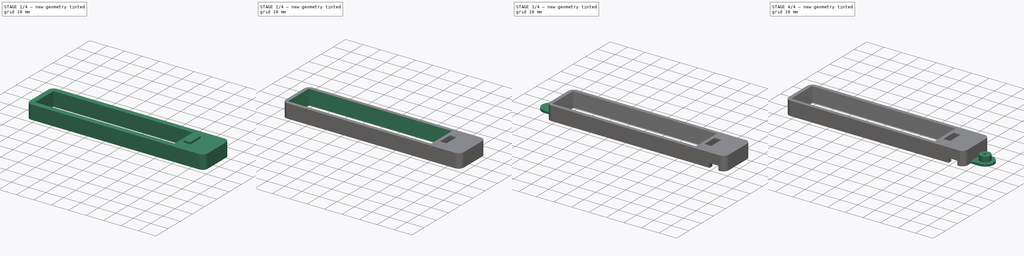
[diagram: build sequence overview — one tinted view per stage of 4, left to right]
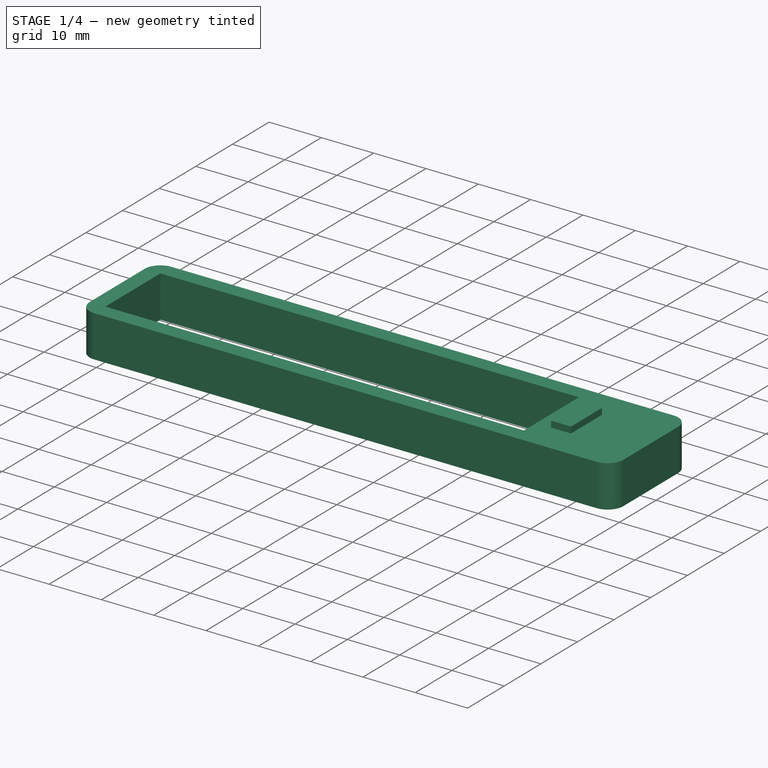
[diagram: stage 1 of 4 — iso view after this stage's code; geometry added in this stage tinted green]
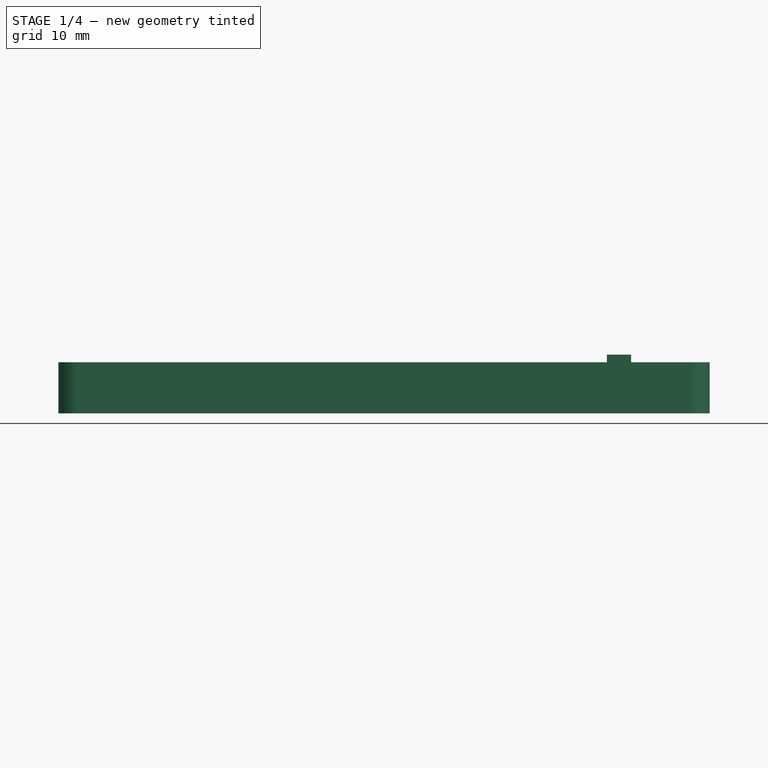
[diagram: stage 1 of 4 — front view after this stage's code; geometry added in this stage tinted green]
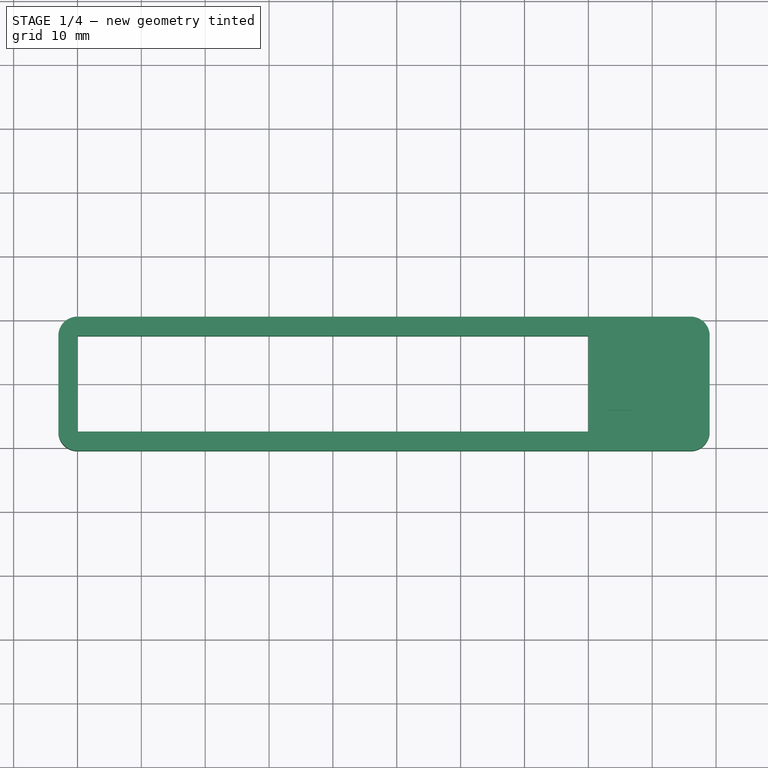
[diagram: stage 1 of 4 — top view after this stage's code; geometry added in this stage tinted green]
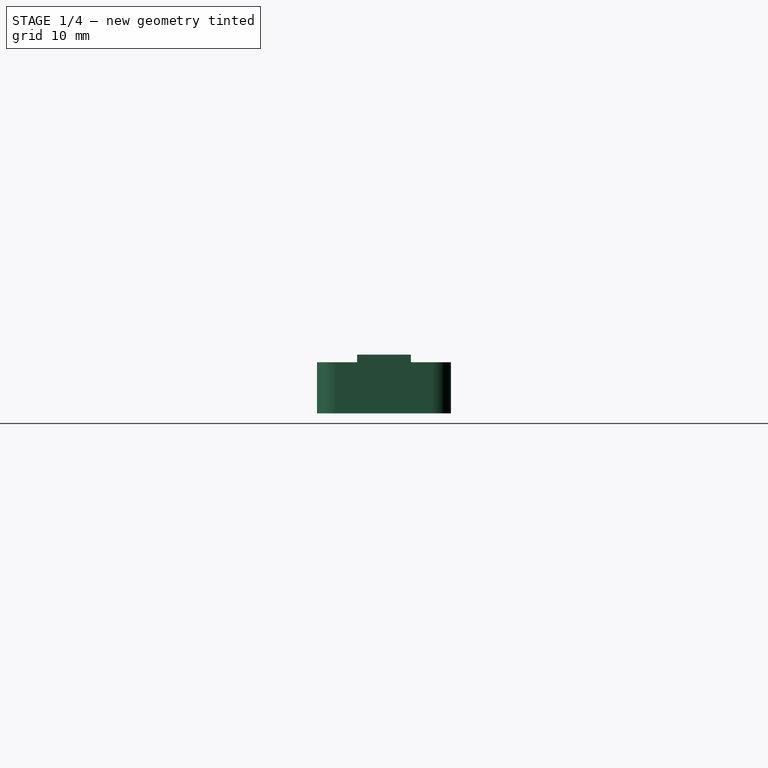
[diagram: stage 1 of 4 — right view after this stage's code; geometry added in this stage tinted green]
FCSTD DOCUMENT  (FreeCAD 0.16R6706 (Git))
Label: Annunciator
License: All rights reserved
LicenseURL: http://en.wikipedia.org/wiki/All_rights_reserved
objects: Sketcher::SketchObject×9, PartDesign::Pad×6, PartDesign::Pocket×3, Part::FeaturePython×1, Part::Cut×1, PartDesign::Draft×1, Part::Fillet×1
note: 31 computed .brp shape members not serialized (recipe doc carries the construction recipe); baked Part::Feature solids carry a one-line shape summary decoded from their .brp

FEATURE [Sketcher::SketchObject] Sketch
  sketch-geometry (21):
    g0: LineSegment StartX=-40 StartY=-7.5 StartZ=0 EndX=40 EndY=-7.5 EndZ=0
    g1: LineSegment StartX=40 StartY=-7.5 StartZ=0 EndX=40 EndY=7.5 EndZ=0
    g2: LineSegment StartX=40 StartY=7.5 StartZ=0 EndX=-40 EndY=7.5 EndZ=0
    g3: LineSegment StartX=-40 StartY=7.5 StartZ=0 EndX=-40 EndY=-7.5 EndZ=0
    g4: LineSegment StartX=-39.9918 StartY=-10.5 StartZ=0 EndX=46.253 EndY=-10.5 EndZ=0
    g5: LineSegment StartX=46.253 StartY=10.5 StartZ=0 EndX=-39.9918 EndY=10.5 EndZ=0
    g6: LineSegment StartX=-43 StartY=7.49184 StartZ=0 EndX=-43 EndY=-7.49184 EndZ=0
    g7: ArcOfCircle CenterX=-39.9918 CenterY=7.49184 CenterZ=0 NormalX=0 NormalY=0 NormalZ=1 Radius=3.00816 StartAngle=1.5708 EndAngle=3.14159
    g8: ArcOfCircle CenterX=-39.9918 CenterY=-7.49184 CenterZ=0 NormalX=0 NormalY=0 NormalZ=1 Radius=3.00816 StartAngle=3.14159 EndAngle=4.71239
    g9: LineSegment [constr] StartX=-40 StartY=7.5 StartZ=0 EndX=40 EndY=-7.5 EndZ=0
    g10: LineSegment [constr] StartX=40 StartY=7.5 StartZ=0 EndX=-40 EndY=-7.5 EndZ=0
    g11: LineSegment [constr] StartX=43 StartY=8.06371 StartZ=0 EndX=49.5 EndY=8.06371 EndZ=0
    g12: LineSegment [constr] StartX=49.5 StartY=8.06371 StartZ=0 EndX=49.5 EndY=-8.43629 EndZ=0
    g13: LineSegment [constr] StartX=49.5 StartY=-8.43629 StartZ=0 EndX=43 EndY=-8.43629 EndZ=0
    g14: LineSegment [constr] StartX=43 StartY=-8.43629 StartZ=0 EndX=43 EndY=8.06371 EndZ=0
    g15: LineSegment StartX=46.253 StartY=10.5 StartZ=0 EndX=56 EndY=10.5 EndZ=0
    g16: LineSegment StartX=59 StartY=7.5 StartZ=0 EndX=59 EndY=-7.5 EndZ=0
    g17: LineSegment StartX=56 StartY=-10.5 StartZ=0 EndX=46.253 EndY=-10.5 EndZ=0
    g18: LineSegment [constr] StartX=46.253 StartY=-10.5 StartZ=0 EndX=46.253 EndY=10.5 EndZ=0
    g19: ArcOfCircle CenterX=56 CenterY=7.5 CenterZ=0 NormalX=0 NormalY=0 NormalZ=1 Radius=3 StartAngle=0 EndAngle=1.5708
    g20: ArcOfCircle CenterX=56 CenterY=-7.5 CenterZ=0 NormalX=0 NormalY=0 NormalZ=1 Radius=3 StartAngle=4.71239 EndAngle=6.28319
  constraints (53):
    c: Coincident(g0,g1)
    c: Coincident(g1,g2)
    c: Coincident(g2,g3)
    c: Coincident(g3,g0)
    c: Horizontal(g0)
    c: Horizontal(g2)
    c: Vertical(g1)
    c: Vertical(g3)
    c: DistanceX(g2,g2) = 80
    c: DistanceY(g3,g3) = 15
    c: Horizontal(g4)
    c: Horizontal(g5)
    c: Vertical(g6)
    c: Tangent(g5,g7) = -1.5708
    c: Tangent(g6,g7) = -1.5708
    c: Tangent(g6,g8) = -1.5708
    c: Tangent(g4,g8) = -1.5708
    c: DistanceY(g2,g5) = 3
    c: DistanceY(g4,g0) = 3
    c: Equal(g7,g8)
    c: DistanceX(g6,g0) = 3
    c: Coincident(g9,g2)
    c: Coincident(g9,g0)
    c: Coincident(g10,g1)
    c: Coincident(g10,g0)
    c: PointOnObject(g-1,g9)
    c: PointOnObject(g-1,g10)
    c: Coincident(g11,g12)
    c: Coincident(g12,g13)
    c: Coincident(g13,g14)
    c: Coincident(g14,g11)
    c: Horizontal(g11)
    c: Horizontal(g13)
    c: Vertical(g12)
    c: Vertical(g14)
    c: DistanceY(g12,g12) = 16.5
    c: Coincident(g17,g18)
    c: Coincident(g18,g15)
    c: Horizontal(g15)
    c: Horizontal(g17)
    c: Vertical(g16)
    c: Vertical(g18)
    c: Coincident(g15,g5)
    c: Coincident(g17,g4)
    c: DistanceX(g11,g11) = 6.5
    c: DistanceX(g1,g11) = 3
    c: Tangent(g15,g19) = 1.5708
    c: Tangent(g16,g19) = 1.5708
    c: Tangent(g17,g20) = 1.5708
    c: Tangent(g16,g20) = 1.5708
    c: Radius(g19) = 3
    c: Radius(g20) = 3
    c: DistanceX(g11,g16) = 9.5
FEATURE [PartDesign::Pad] Pad  label="Pad (frame)"
  Length = 8
  Length2 = 100
  Sketch = -> Sketch
  Type = 0
FEATURE [Sketcher::SketchObject] Sketch004
  sketch-geometry (6):
    g0: LineSegment StartX=42.2 StartY=8.30882 StartZ=0 EndX=55.2 EndY=8.30882 EndZ=0
    g1: LineSegment StartX=55.2 StartY=8.30882 StartZ=0 EndX=55.2 EndY=-8.19118 EndZ=0
    g2: LineSegment StartX=55.2 StartY=-8.19118 StartZ=0 EndX=42.2 EndY=-8.19118 EndZ=0
    g3: LineSegment StartX=42.2 StartY=-8.19118 StartZ=0 EndX=42.2 EndY=8.30882 EndZ=0
    g4: LineSegment [constr] StartX=42.2 StartY=8.30882 StartZ=0 EndX=55.2 EndY=-8.19118 EndZ=0
    g5: LineSegment [constr] StartX=55.2 StartY=8.30882 StartZ=0 EndX=42.2 EndY=-8.19118 EndZ=0
  constraints (15):
    c: Coincident(g0,g1)
    c: Coincident(g1,g2)
    c: Coincident(g2,g3)
    c: Coincident(g3,g0)
    c: Horizontal(g0)
    c: Horizontal(g2)
    c: Vertical(g1)
    c: Vertical(g3)
    c: Coincident(g4,g0)
    c: Coincident(g4,g1)
    c: Coincident(g5,g0)
    c: Coincident(g5,g2)
    c: DistanceX(g0,g0) = 13
    c: DistanceY(g1,g1) = 16.5
    c: DistanceX(g-1,g2) = 42.2
FEATURE [PartDesign::Pad] Pad003  label="Pad (switch base)"
  Length = 7.2
  Length2 = 100
  Sketch = -> Sketch004
  Type = 0
FEATURE [Sketcher::SketchObject] Sketch005
  ExternalGeometry = -> [Pad003]
  Placement = pos=(0,0,7.2) rot=(0,0,1;0rad)
  Support = -> Pad003 [Face6]
  sketch-geometry (4):
    g0: LineSegment StartX=42.9 StartY=4.2 StartZ=0 EndX=46.7 EndY=4.2 EndZ=0
    g1: LineSegment StartX=46.7 StartY=4.2 StartZ=0 EndX=46.7 EndY=-4.2 EndZ=0
    g2: LineSegment StartX=46.7 StartY=-4.2 StartZ=0 EndX=42.9 EndY=-4.2 EndZ=0
    g3: LineSegment StartX=42.9 StartY=-4.2 StartZ=0 EndX=42.9 EndY=4.2 EndZ=0
  constraints (12):
    c: Coincident(g0,g1)
    c: Coincident(g1,g2)
    c: Coincident(g2,g3)
    c: Coincident(g3,g0)
    c: Horizontal(g0)
    c: Horizontal(g2)
    c: Vertical(g1)
    c: Vertical(g3)
    c: DistanceX(g0,g0) = 3.8
    c: DistanceY(g1,g1) = 8.4
    c: Symmetric(g0,g2,g-1)
    c: DistanceX(g-3,g0) = 0.7
FEATURE [PartDesign::Pad] Pad004  label="Pad (switch toggle)"
  Length = 2
  Length2 = 100
  Sketch = -> Sketch005
  Type = 0
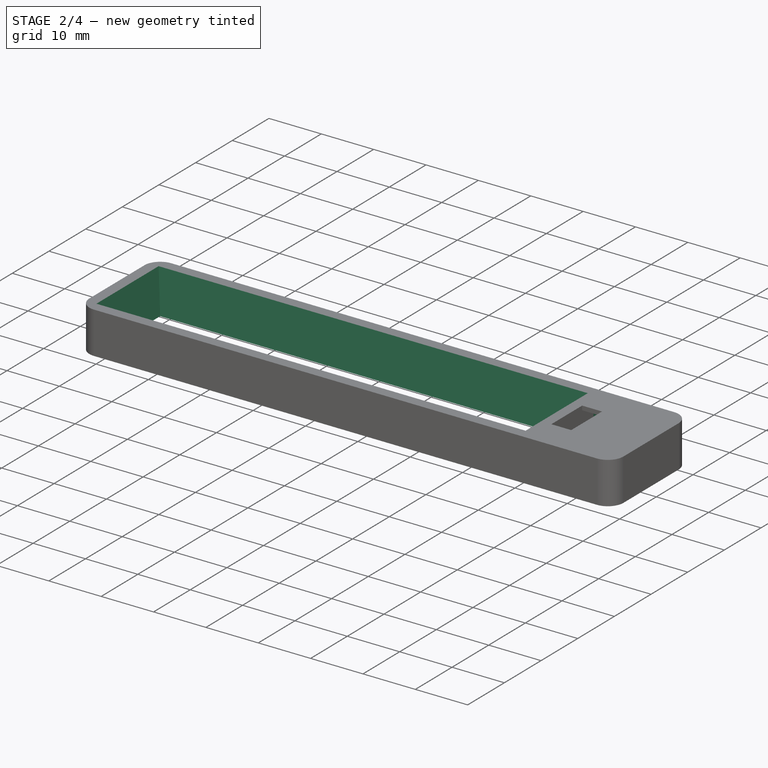
[diagram: stage 2 of 4 — iso view after this stage's code; geometry added in this stage tinted green]
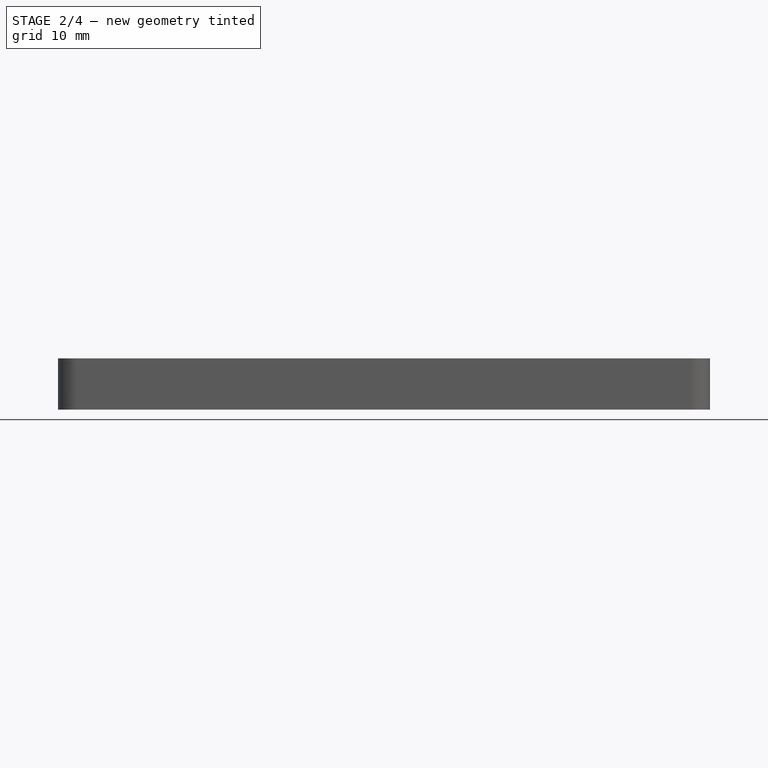
[diagram: stage 2 of 4 — front view after this stage's code; geometry added in this stage tinted green]
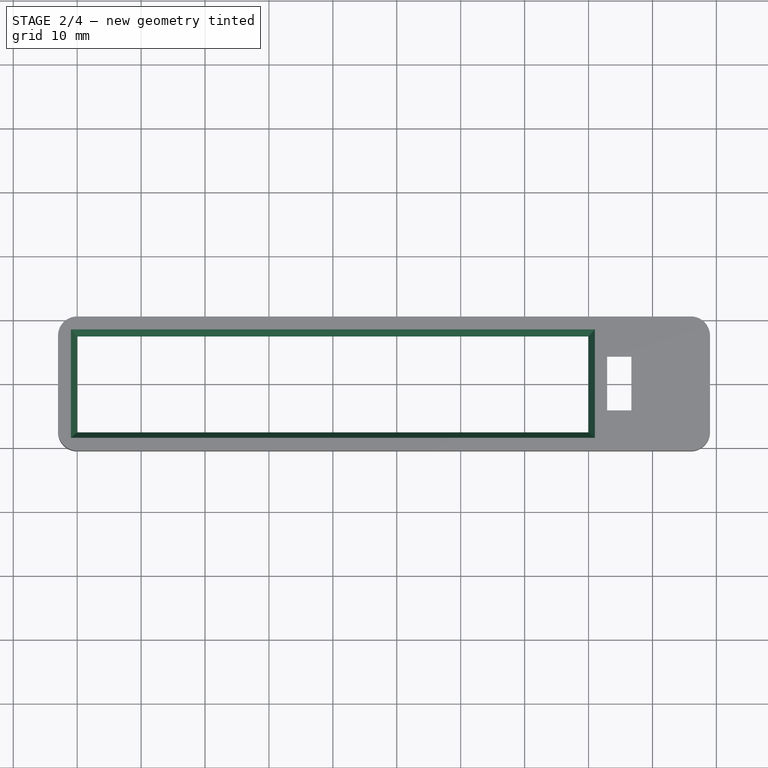
[diagram: stage 2 of 4 — top view after this stage's code; geometry added in this stage tinted green]
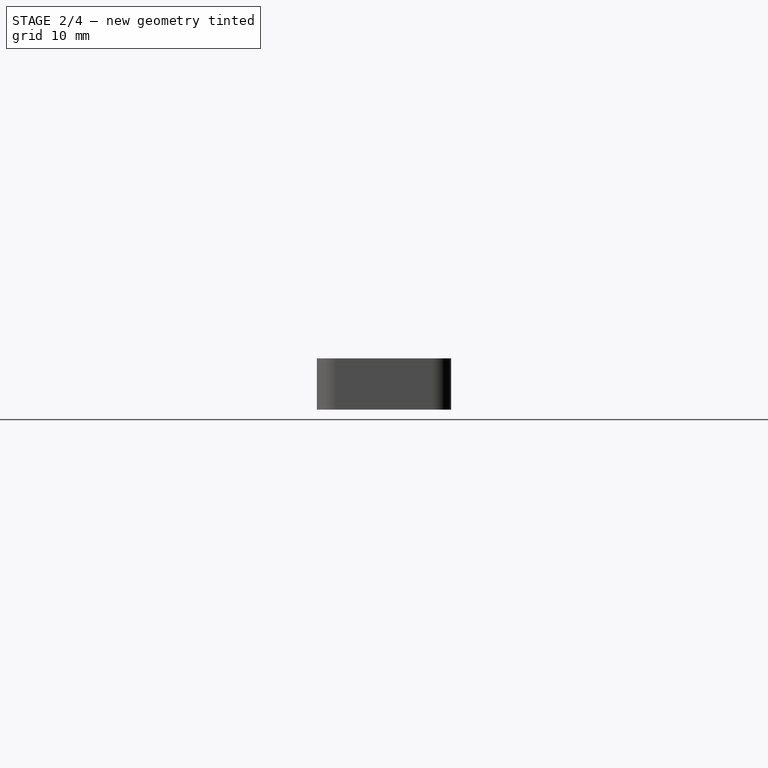
[diagram: stage 2 of 4 — right view after this stage's code; geometry added in this stage tinted green]
FEATURE [Part::Cut] Cut
  Base = -> Pad
  Tool = -> Pad004
FEATURE [PartDesign::Draft] Draft
  Angle = 7
  Base = -> Cut [Face19,Face17,Face18,Face20]
  NeutralPlane = -> Cut [Face4]
  Reversed = true
FEATURE [Sketcher::SketchObject] Sketch006
  ExternalGeometry = -> [Draft]
  Placement = pos=(0,8.30882,0) rot=(1,0,0;1.5708rad)
  Support = -> Draft [Face16]
  sketch-geometry (8):
    g0: LineSegment StartX=55.2 StartY=5.4 StartZ=0 EndX=42.2 EndY=5.4 EndZ=0
    g1: LineSegment StartX=42.2 StartY=5.4 StartZ=0 EndX=42.2 EndY=1 EndZ=0
    g2: LineSegment StartX=42.2 StartY=1 StartZ=0 EndX=55.2 EndY=1 EndZ=0
    g3: LineSegment StartX=55.2 StartY=1 StartZ=0 EndX=55.2 EndY=1.8 EndZ=0
    g4: LineSegment StartX=55.2 StartY=1.8 StartZ=0 EndX=43.7 EndY=1.8 EndZ=0
    g5: LineSegment StartX=43.7 StartY=1.8 StartZ=0 EndX=43.7 EndY=4.6 EndZ=0
    g6: LineSegment StartX=43.7 StartY=4.6 StartZ=0 EndX=55.2 EndY=4.6 EndZ=0
    g7: LineSegment StartX=55.2 StartY=4.6 StartZ=0 EndX=55.2 EndY=5.4 EndZ=0
  constraints (24):
    c: Horizontal(g0)
    c: Coincident(g1,g0)
    c: Vertical(g1)
    c: Coincident(g2,g1)
    c: Horizontal(g2)
    c: Coincident(g3,g2)
    c: Vertical(g3)
    c: Coincident(g4,g3)
    c: Horizontal(g4)
    c: Coincident(g5,g4)
    c: Vertical(g5)
    c: Coincident(g6,g5)
    c: Horizontal(g6)
    c: Coincident(g7,g6)
    c: Coincident(g7,g0)
    c: Vertical(g7)
    c: DistanceX(g0,g-3) = 0
    c: Equal(g4,g6)
    c: DistanceX(g0,g5) = 1.5
    c: DistanceY(g5,g0) = 0.8
    c: DistanceY(g1,g4) = 0.8
    c: PointOnObject(g0,g-4)
    c: DistanceY(g-4,g1) = 1
    c: DistanceY(g4,g5) = 2.8
FEATURE [PartDesign::Pocket] Pocket001
  Length = 5
  Sketch = -> Sketch006
  Type = 0
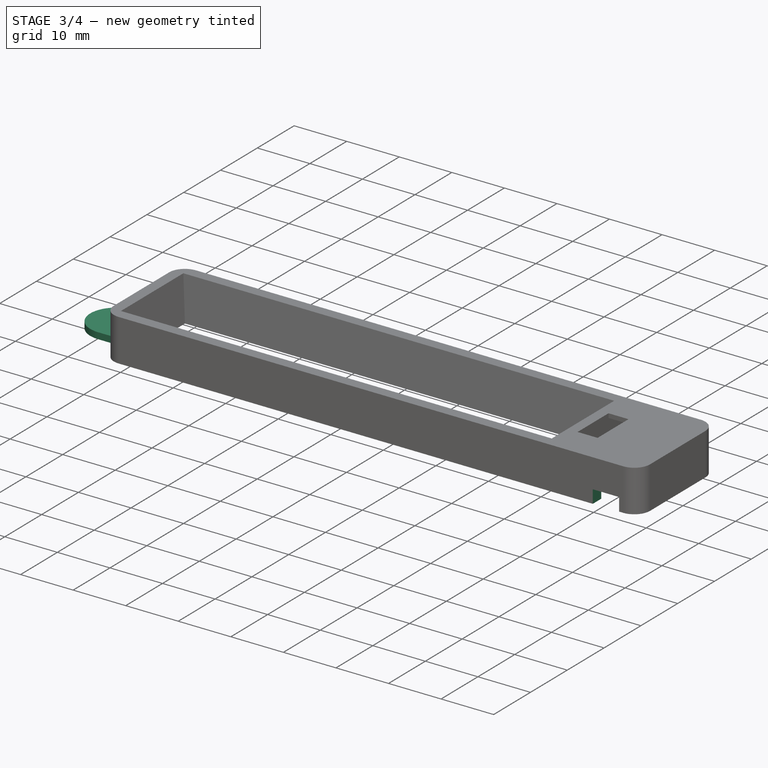
[diagram: stage 3 of 4 — iso view after this stage's code; geometry added in this stage tinted green]
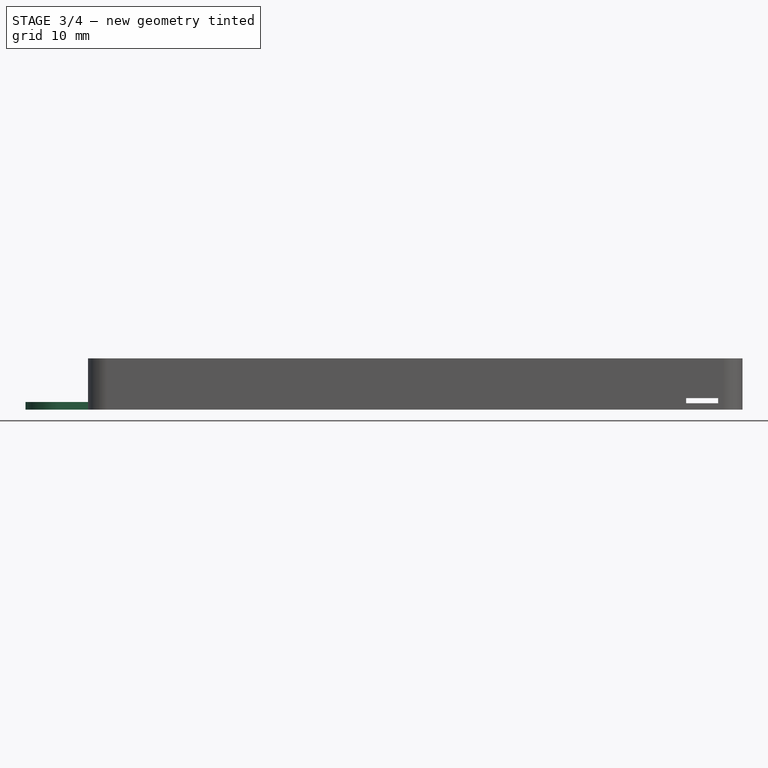
[diagram: stage 3 of 4 — front view after this stage's code; geometry added in this stage tinted green]
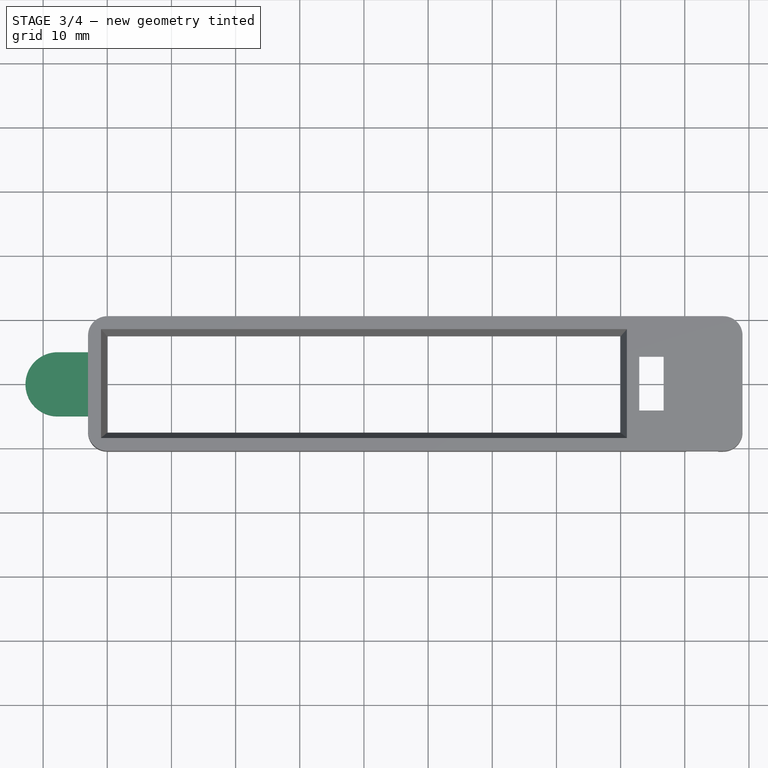
[diagram: stage 3 of 4 — top view after this stage's code; geometry added in this stage tinted green]
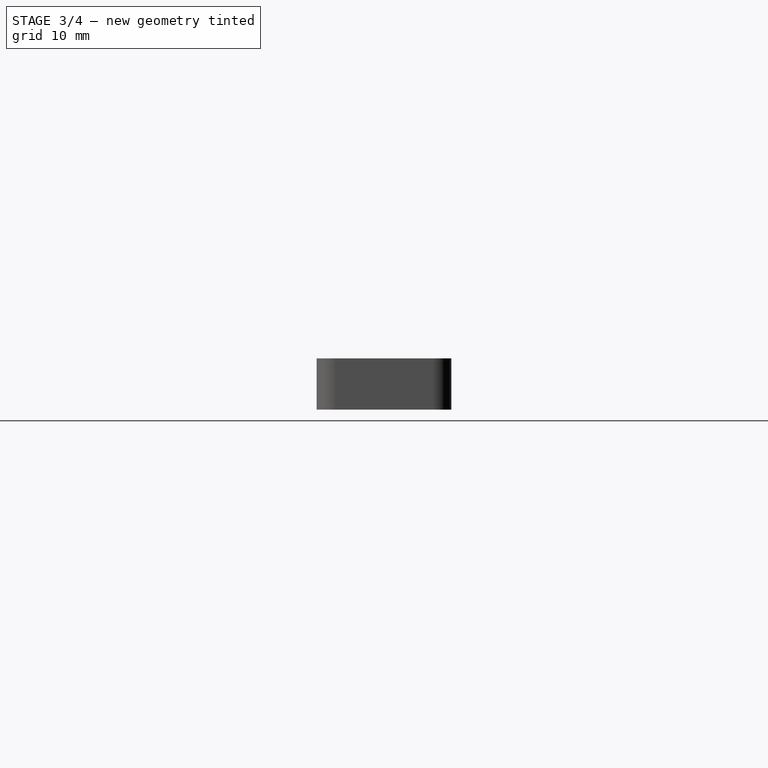
[diagram: stage 3 of 4 — right view after this stage's code; geometry added in this stage tinted green]
FEATURE [Sketcher::SketchObject] Sketch001
  sketch-geometry (5):
    g0: LineSegment [constr] StartX=0 StartY=0 StartZ=0 EndX=-47.75 EndY=0 EndZ=0
    g1: ArcOfCircle CenterX=-47.75 CenterY=0 CenterZ=0 NormalX=0 NormalY=0 NormalZ=1 Radius=5 StartAngle=1.5708 EndAngle=4.71239
    g2: LineSegment StartX=-47.75 StartY=5 StartZ=0 EndX=-43 EndY=5 EndZ=0
    g3: LineSegment StartX=-43 StartY=5 StartZ=0 EndX=-43 EndY=-5 EndZ=0
    g4: LineSegment StartX=-43 StartY=-5 StartZ=0 EndX=-47.75 EndY=-5 EndZ=0
  constraints (15):
    c: Coincident(g0,g-1)
    c: Coincident(g1,g0)
    c: Coincident(g2,g1)
    c: Horizontal(g2)
    c: Coincident(g3,g2)
    c: Vertical(g3)
    c: Coincident(g4,g3)
    c: Coincident(g4,g1)
    c: Horizontal(g4)
    c: Equal(g2,g4)
    c: DistanceX(g1,g0) = 0
    c: DistanceX(g2,g-1) = 43
    c: Horizontal(g0)
    c: DistanceX(g2,g2) = 4.75
    c: Radius(g1) = 5
FEATURE [PartDesign::Pad] Pad001
  Length = 1.2
  Length2 = 100
  Sketch = -> Sketch001
  Type = 0
FEATURE [Sketcher::SketchObject] Sketch009
  ExternalGeometry = -> [Pocket001]
  Placement = pos=(0,8.30882,0) rot=(1,0,0;1.5708rad)
  Support = -> Pocket001 [Face34]
  sketch-geometry (4):
    g0: LineSegment StartX=43.7 StartY=1.8 StartZ=0 EndX=45.7 EndY=1.8 EndZ=0
    g1: LineSegment StartX=45.7 StartY=1.8 StartZ=0 EndX=45.7 EndY=4.6 EndZ=0
    g2: LineSegment StartX=45.7 StartY=4.6 StartZ=0 EndX=43.7 EndY=4.6 EndZ=0
    g3: LineSegment StartX=43.7 StartY=4.6 StartZ=0 EndX=43.7 EndY=1.8 EndZ=0
  constraints (11):
    c: Coincident(g0,g1)
    c: Coincident(g1,g2)
    c: Coincident(g2,g3)
    c: Coincident(g3,g0)
    c: Horizontal(g0)
    c: Horizontal(g2)
    c: Vertical(g1)
    c: Vertical(g3)
    c: Coincident(g2,g-3)
    c: DistanceX(g2,g2) = 2
    c: Coincident(g0,g-3)
FEATURE [PartDesign::Pad] Pad005
  Length = 2.2
  Length2 = 100
  Sketch = -> Sketch009
  Type = 0
FEATURE [Part::Fillet] Fillet
  Base = -> Pad005
  Edges = 4 edges r=0.5: [Edge103,Edge107,Edge109,Edge110]
FEATURE [Sketcher::SketchObject] Sketch010
  ExternalGeometry = -> [Fillet]
  Placement = pos=(0,-10.5,0) rot=(1,0,0;1.5708rad)
  Support = -> Fillet [Face36]
  sketch-geometry (4):
    g0: LineSegment StartX=50.2 StartY=0 StartZ=0 EndX=55.2 EndY=0 EndZ=0
    g1: LineSegment StartX=55.2 StartY=0 StartZ=0 EndX=55.2 EndY=2.5 EndZ=0
    g2: LineSegment StartX=55.2 StartY=2.5 StartZ=0 EndX=50.2 EndY=2.5 EndZ=0
    g3: LineSegment StartX=50.2 StartY=2.5 StartZ=0 EndX=50.2 EndY=0 EndZ=0
  constraints (12):
    c: Coincident(g0,g1)
    c: Coincident(g1,g2)
    c: Coincident(g2,g3)
    c: Coincident(g3,g0)
    c: Horizontal(g0)
    c: Horizontal(g2)
    c: Vertical(g1)
    c: Vertical(g3)
    c: PointOnObject(g0,g-1)
    c: DistanceY(g3,g3) = 2.5
    c: Coincident(g-3,g0)
    c: DistanceX(g2,g2) = 5
FEATURE [PartDesign::Pocket] Pocket002
  Length = 3
  Sketch = -> Sketch010
  Type = 0
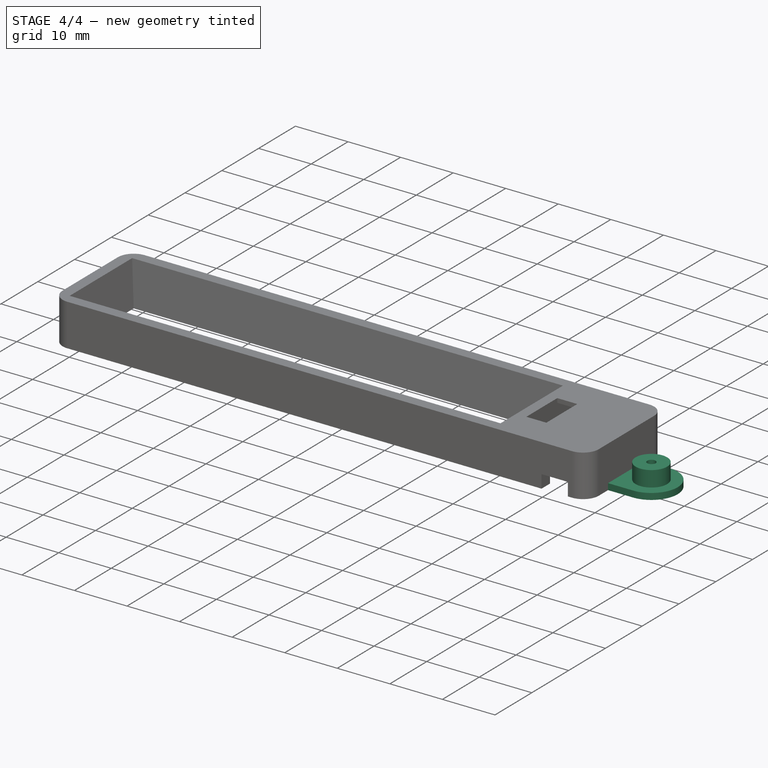
[diagram: stage 4 of 4 — iso view after this stage's code; geometry added in this stage tinted green]
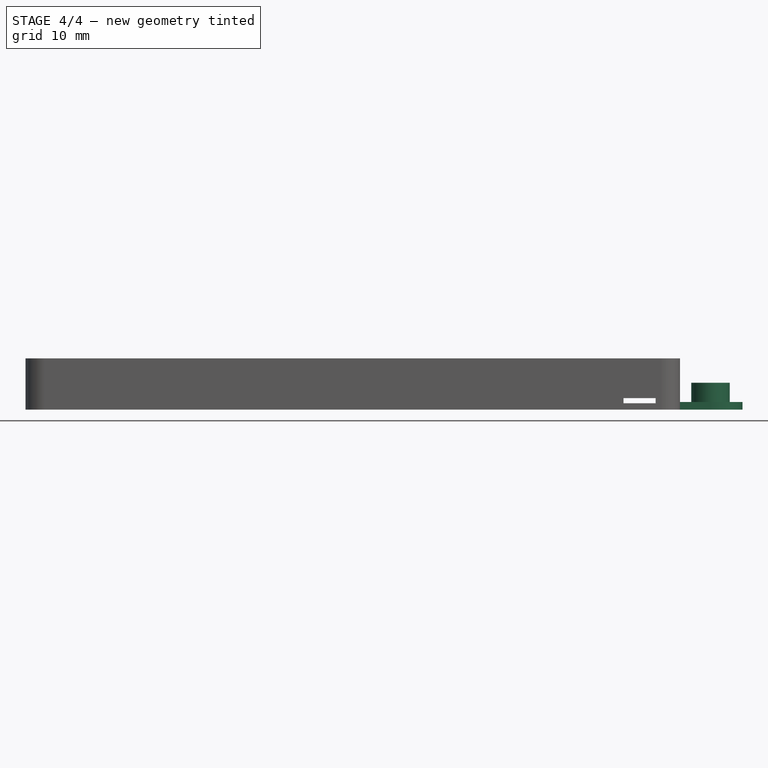
[diagram: stage 4 of 4 — front view after this stage's code; geometry added in this stage tinted green]
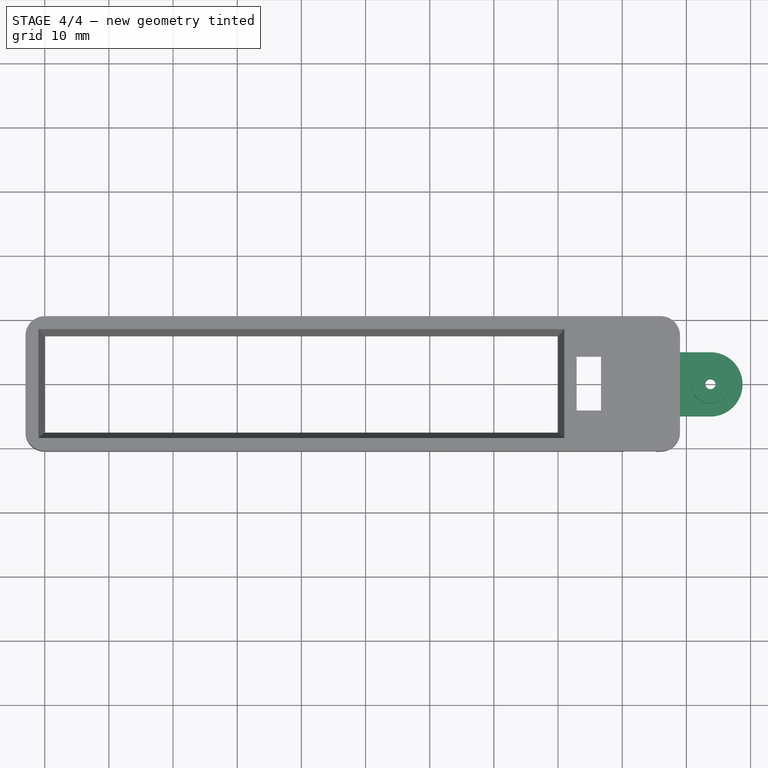
[diagram: stage 4 of 4 — top view after this stage's code; geometry added in this stage tinted green]
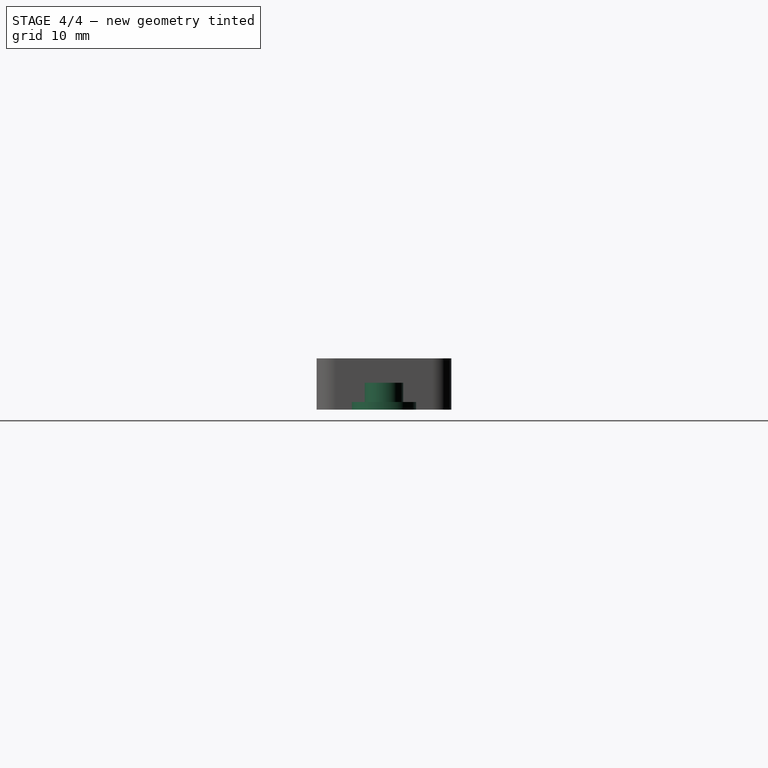
[diagram: stage 4 of 4 — right view after this stage's code; geometry added in this stage tinted green]
FEATURE [Sketcher::SketchObject] Sketch002
  ExternalGeometry = -> [Pad001]
  Placement = pos=(0,0,1.2) rot=(0,0,1;0rad)
  Support = -> Pad001 [Face6]
  sketch-geometry (1):
    g0: Circle CenterX=-47.75 CenterY=0 CenterZ=0 NormalX=0 NormalY=0 NormalZ=1 Radius=3
  constraints (2):
    c: Coincident(g0,g-3)
    c: Radius(g0) = 3
FEATURE [PartDesign::Pad] Pad002
  Length = 3
  Length2 = 100
  Sketch = -> Sketch002
  Type = 0
FEATURE [Sketcher::SketchObject] Sketch003
  ExternalGeometry = -> [Pad002]
  Placement = pos=(0,0,4.2) rot=(0,0,1;0rad)
  Support = -> Pad002 [Face8]
  sketch-geometry (1):
    g0: Circle CenterX=-47.75 CenterY=0 CenterZ=0 NormalX=0 NormalY=0 NormalZ=1 Radius=0.8
  constraints (2):
    c: Coincident(g0,g-3)
    c: Radius(g0) = 0.8
FEATURE [PartDesign::Pocket] Pocket
  Length = 5
  Sketch = -> Sketch003
  Type = 0
FEATURE [Part::FeaturePython] Clone  label="Clone of Pocket"  # Draft clone (typed FeaturePython)
  Objects = -> [Pocket]
  Placement = pos=(16,0,0) rot=(0,0,1;3.14159rad)
  Scale = (1,1,1)
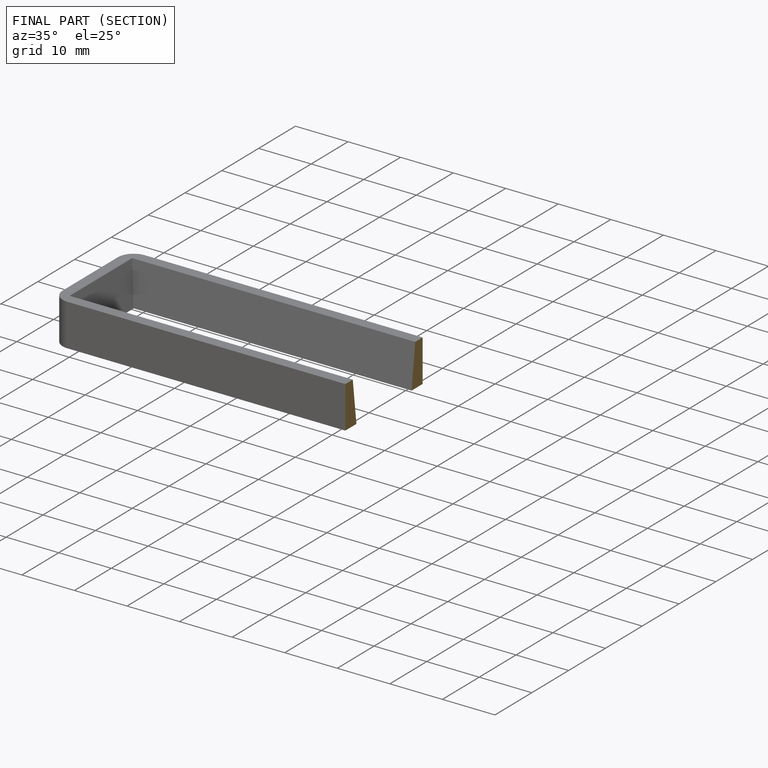
[diagram: finished part — half-section view (interior)]
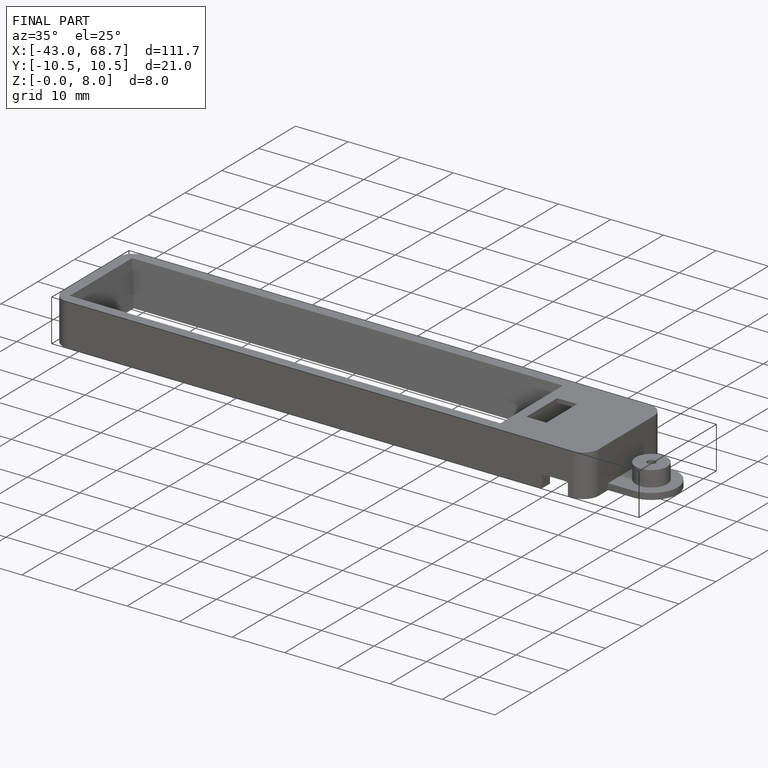
[diagram: finished part — iso view with bounding-box wireframe]
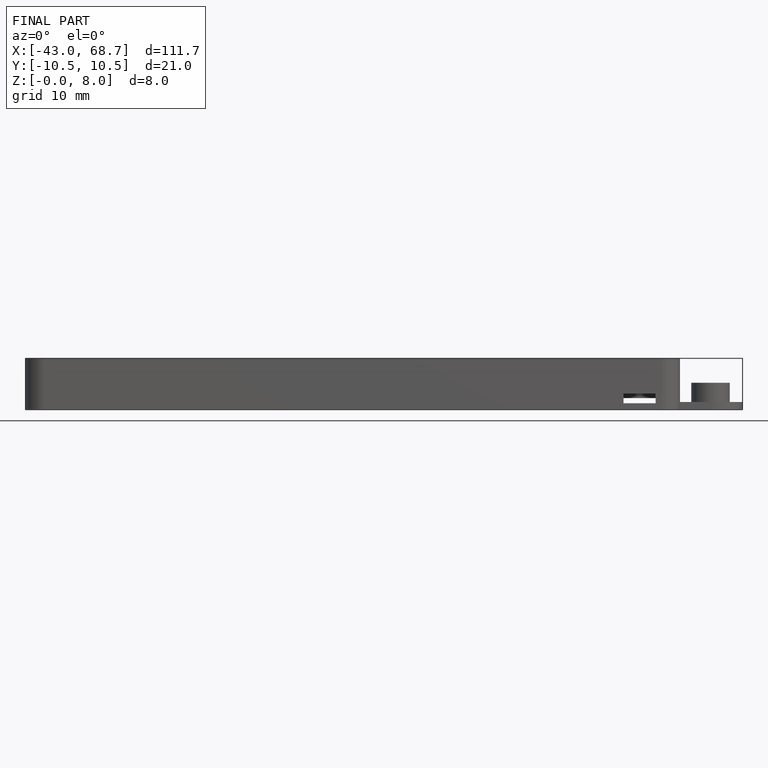
[diagram: finished part — front view with bounding-box wireframe]
